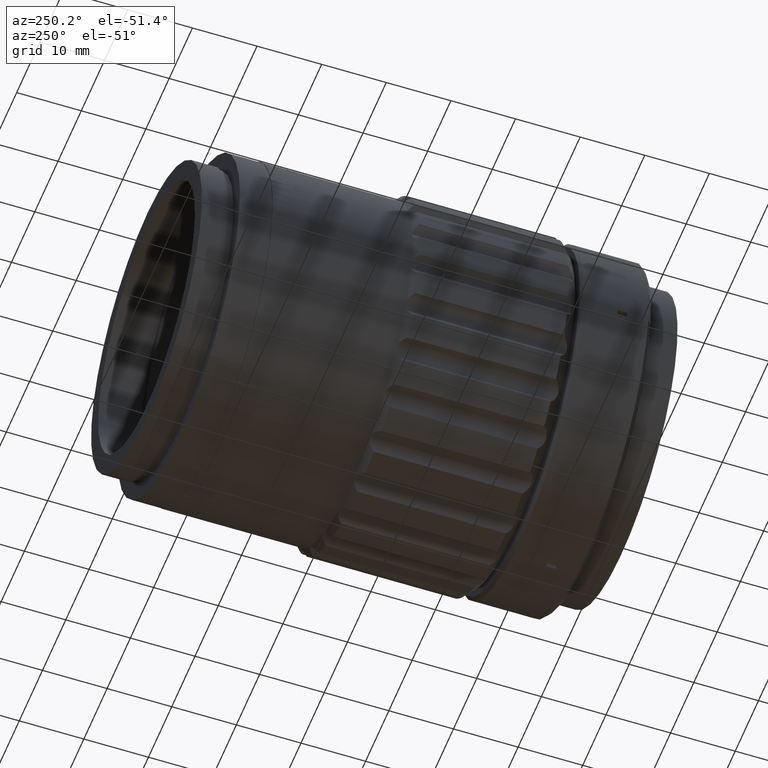
[diagram: clean part render]
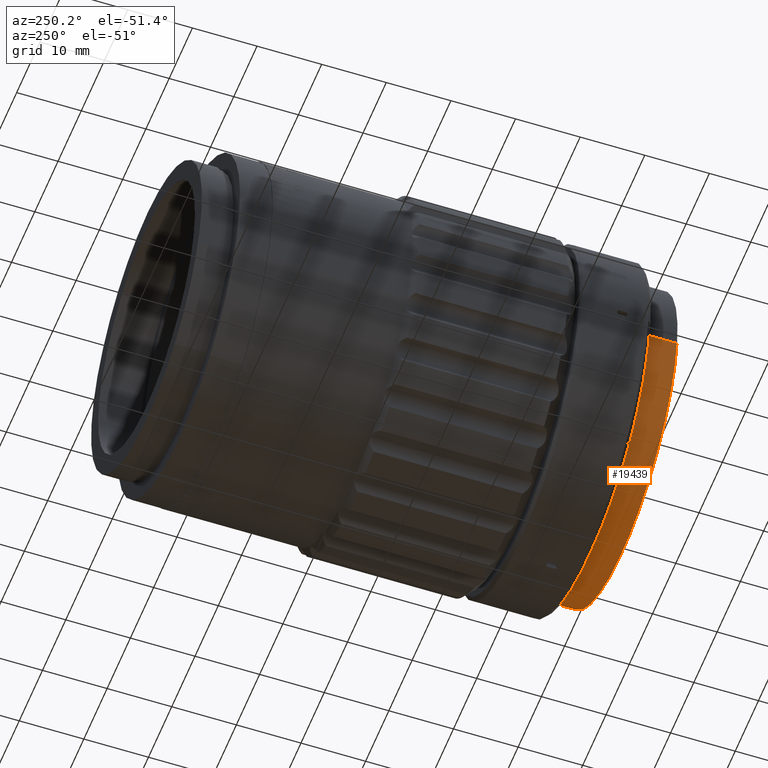
[diagram: same view with one face highlighted and labeled with its STEP entity id]
A machine part, auxiliary view. The second image highlights one B-rep face of the part: STEP entity #19439.
In plain terms, the highlighted cylindrical surface (partial cylindrical patch) has radius 24.1 mm, axis along (-0, 1, -0).
Its self-contained STEP definition (entity closure, byte-faithful):
#428 = DIRECTION ( 'NONE',  ( -0.0000000000000000000, 1.000000000000000000, -0.0000000000000000000 ) ) ;
#4950 = LINE ( 'NONE', #54075, #63349 ) ;
#5595 = CARTESIAN_POINT ( 'NONE',  ( 0.0000000000000000000, -10.43820173583021000, 24.10000000000000900 ) ) ;
#7438 = DIRECTION ( 'NONE',  ( -0.0000000000000000000, 1.000000000000000000, -0.0000000000000000000 ) ) ;
#8829 = VERTEX_POINT ( 'NONE', #5595 ) ;
#9195 = ORIENTED_EDGE ( 'NONE', *, *, #43079, .F. ) ;
#10150 = EDGE_CURVE ( 'NONE', #71985, #34075, #45812, .T. ) ;
#11946 = EDGE_LOOP ( 'NONE', ( #58417, #63922, #9195, #50265 ) ) ;
#12193 = DIRECTION ( 'NONE',  ( -0.0000000000000000000, 1.000000000000000000, -0.0000000000000000000 ) ) ;
#12912 = CIRCLE ( 'NONE', #39481, 24.10000000000000900 ) ;
#13938 = DIRECTION ( 'NONE',  ( -0.0000000000000000000, 1.000000000000000000, -0.0000000000000000000 ) ) ;
#15837 = AXIS2_PLACEMENT_3D ( 'NONE', #67001, #13938, #32904 ) ;
#19439 = ADVANCED_FACE ( 'NONE', ( #84274 ), #86370, .T. ) ;
#20056 = EDGE_CURVE ( 'NONE', #52814, #8829, #4950, .T. ) ;
#22772 = CARTESIAN_POINT ( 'NONE',  ( 2.951398785945122000E-015, -10.43820173583021000, -24.10000000000000900 ) ) ;
#26989 = CIRCLE ( 'NONE', #71238, 24.10000000000000900 ) ;
#27116 = DIRECTION ( 'NONE',  ( 0.0000000000000000000, 0.0000000000000000000, 1.000000000000000000 ) ) ;
#27986 = CARTESIAN_POINT ( 'NONE',  ( 0.0000000000000000000, -10.43820173583021000, 0.0000000000000000000 ) ) ;
#32904 = DIRECTION ( 'NONE',  ( 0.0000000000000000000, 0.0000000000000000000, 1.000000000000000000 ) ) ;
#34075 = VERTEX_POINT ( 'NONE', #22772 ) ;
#35034 = CARTESIAN_POINT ( 'NONE',  ( 2.951398785945122000E-015, -14.79999999999999400, -24.10000000000000900 ) ) ;
#39481 = AXIS2_PLACEMENT_3D ( 'NONE', #66628, #7438, #54092 ) ;
#43079 = EDGE_CURVE ( 'NONE', #8829, #34075, #26989, .T. ) ;
#44775 = EDGE_CURVE ( 'NONE', #52814, #71985, #12912, .T. ) ;
#45812 = LINE ( 'NONE', #78091, #67727 ) ;
#50265 = ORIENTED_EDGE ( 'NONE', *, *, #20056, .F. ) ;
#52814 = VERTEX_POINT ( 'NONE', #74025 ) ;
#54075 = CARTESIAN_POINT ( 'NONE',  ( 0.0000000000000000000, 35.23590944691601100, 24.10000000000000900 ) ) ;
#54092 = DIRECTION ( 'NONE',  ( 0.0000000000000000000, 0.0000000000000000000, 1.000000000000000000 ) ) ;
#58417 = ORIENTED_EDGE ( 'NONE', *, *, #44775, .T. ) ;
#63349 = VECTOR ( 'NONE', #428, 1000.000000000000000 ) ;
#63922 = ORIENTED_EDGE ( 'NONE', *, *, #10150, .T. ) ;
#66628 = CARTESIAN_POINT ( 'NONE',  ( 0.0000000000000000000, -14.79999999999999400, 0.0000000000000000000 ) ) ;
#67001 = CARTESIAN_POINT ( 'NONE',  ( 0.0000000000000000000, 35.23590944691601100, 0.0000000000000000000 ) ) ;
#67727 = VECTOR ( 'NONE', #12193, 1000.000000000000000 ) ;
#71238 = AXIS2_PLACEMENT_3D ( 'NONE', #27986, #74593, #27116 ) ;
#71985 = VERTEX_POINT ( 'NONE', #35034 ) ;
#74025 = CARTESIAN_POINT ( 'NONE',  ( 0.0000000000000000000, -14.79999999999999400, 24.10000000000000900 ) ) ;
#74593 = DIRECTION ( 'NONE',  ( -0.0000000000000000000, 1.000000000000000000, -0.0000000000000000000 ) ) ;
#78091 = CARTESIAN_POINT ( 'NONE',  ( 2.951398785945122000E-015, 35.23590944691601100, -24.10000000000000900 ) ) ;
#84274 = FACE_OUTER_BOUND ( 'NONE', #11946, .T. ) ;
#86370 = CYLINDRICAL_SURFACE ( 'NONE', #15837, 24.10000000000000900 ) ;